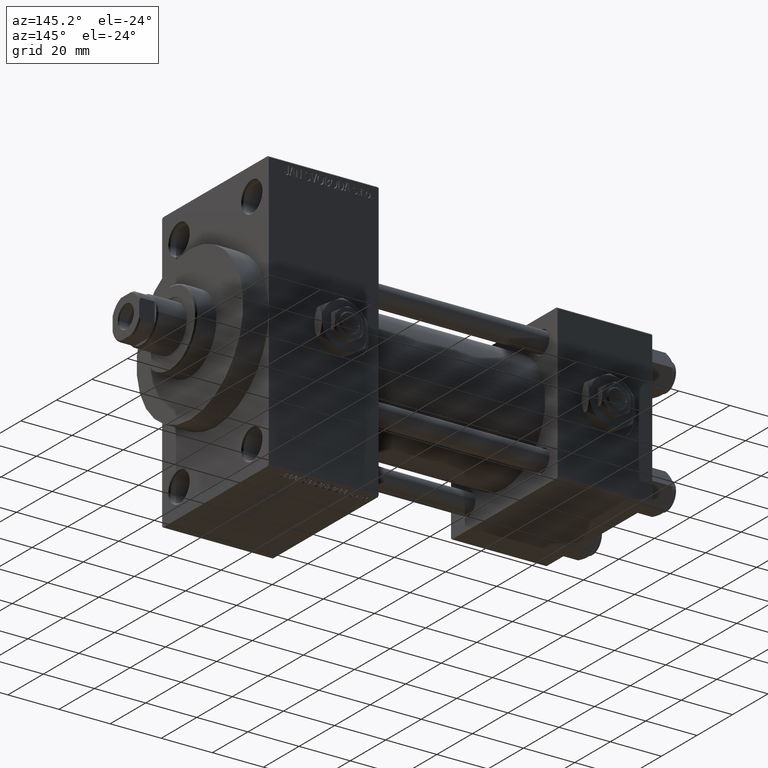
[diagram: clean part render]
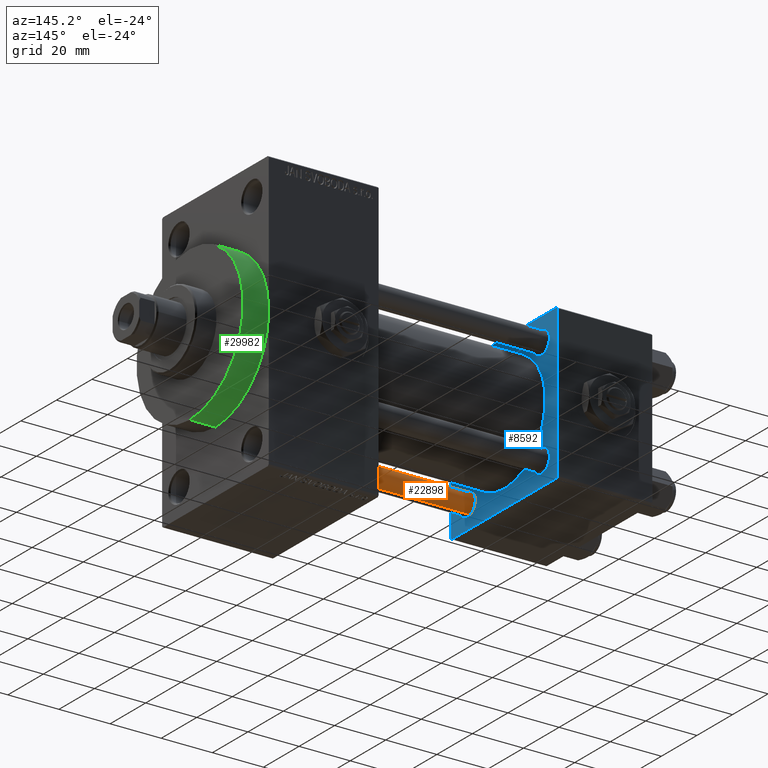
[diagram: same view with three faces highlighted in distinct colors, each labeled with its STEP entity id]
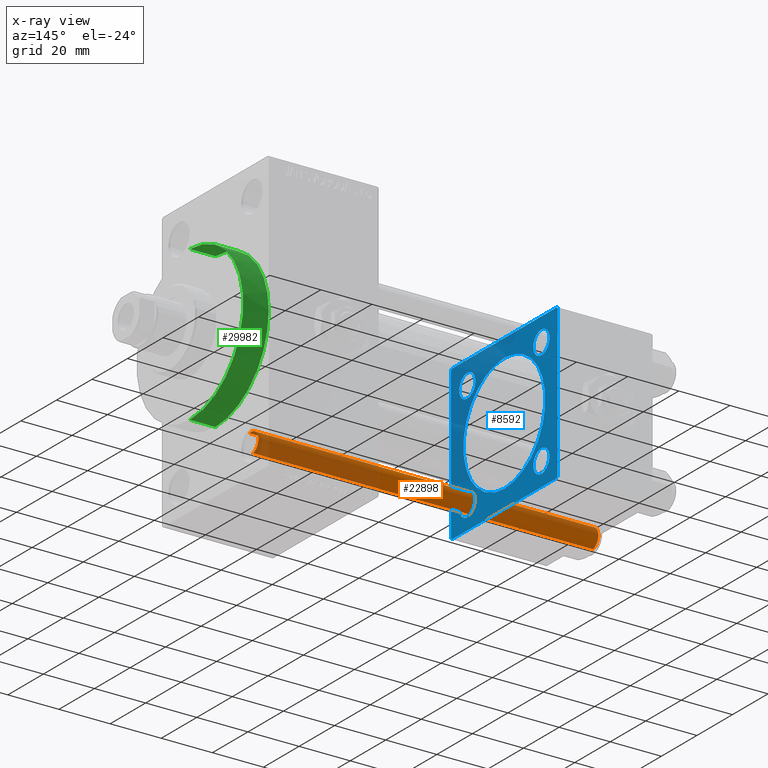
[diagram: x-ray of the same camera — body ghosted, the three highlighted faces saturated]
A machine part, auxiliary view with three faces highlighted in distinct colors.
The next image is the same camera in x-ray (body ghosted, the three faces saturated) — at least one of them is partly hidden behind the body in this view.
Their STEP definitions:

[orange] entity #22898 — the highlighted cylindrical surface (edge-blend (fillet) strip) has radius 4 mm, axis along (-1, 0, 0).
#92 = AXIS2_PLACEMENT_3D ( 'NONE', #48612, #29680, #14461 ) ;
#802 = DIRECTION ( 'NONE',  ( -0.000000000000000000, -0.000000000000000000, -1.000000000000000000 ) ) ;
#1283 = ORIENTED_EDGE ( 'NONE', *, *, #5029, .T. ) ;
#3264 = VECTOR ( 'NONE', #8091, 1000.000000000000000 ) ;
#3885 = DIRECTION ( 'NONE',  ( 0.000000000000000000, 0.000000000000000000, -1.000000000000000000 ) ) ;
#4070 = CIRCLE ( 'NONE', #92, 4.000000000000000000 ) ;
#5029 = EDGE_CURVE ( 'NONE', #23511, #7323, #4070, .T. ) ;
#5352 = ORIENTED_EDGE ( 'NONE', *, *, #48376, .T. ) ;
#5626 = AXIS2_PLACEMENT_3D ( 'NONE', #13697, #3885, #21423 ) ;
#7323 = VERTEX_POINT ( 'NONE', #30278 ) ;
#7791 = VERTEX_POINT ( 'NONE', #41805 ) ;
#8091 = DIRECTION ( 'NONE',  ( -0.000000000000000000, -0.000000000000000000, -1.000000000000000000 ) ) ;
#8617 = AXIS2_PLACEMENT_3D ( 'NONE', #19756, #802, #15994 ) ;
#11985 = CARTESIAN_POINT ( 'NONE',  ( -4.000000000000000000, 0.000000000000000000, 133.5000000000000000 ) ) ;
#13697 = CARTESIAN_POINT ( 'NONE',  ( 0.000000000000000000, 0.000000000000000000, 133.5000000000000000 ) ) ;
#14461 = DIRECTION ( 'NONE',  ( 1.000000000000000000, 0.000000000000000000, 0.000000000000000000 ) ) ;
#15030 = FACE_OUTER_BOUND ( 'NONE', #48951, .T. ) ;
#15994 = DIRECTION ( 'NONE',  ( -1.000000000000000000, 0.000000000000000000, 0.000000000000000000 ) ) ;
#16853 = VERTEX_POINT ( 'NONE', #11985 ) ;
#19756 = CARTESIAN_POINT ( 'NONE',  ( 0.000000000000000000, 0.000000000000000000, 134.0000000000000000 ) ) ;
#19793 = LINE ( 'NONE', #37771, #3264 ) ;
#21423 = DIRECTION ( 'NONE',  ( 1.000000000000000000, 0.000000000000000000, 0.000000000000000000 ) ) ;
#22401 = DIRECTION ( 'NONE',  ( -0.000000000000000000, -0.000000000000000000, -1.000000000000000000 ) ) ;
#22898 = ADVANCED_FACE ( 'NONE', ( #15030 ), #27256, .T. ) ;
#23511 = VERTEX_POINT ( 'NONE', #23633 ) ;
#23633 = CARTESIAN_POINT ( 'NONE',  ( -4.000000000000000000, 0.000000000000000000, 0.5000000000000004441 ) ) ;
#25416 = VECTOR ( 'NONE', #22401, 1000.000000000000000 ) ;
#27256 = CYLINDRICAL_SURFACE ( 'NONE', #8617, 4.000000000000000000 ) ;
#28264 = EDGE_CURVE ( 'NONE', #16853, #23511, #48322, .T. ) ;
#29680 = DIRECTION ( 'NONE',  ( -0.000000000000000000, -0.000000000000000000, 1.000000000000000000 ) ) ;
#30278 = CARTESIAN_POINT ( 'NONE',  ( 4.000000000000000000, 4.898587196589412829E-16, 0.5000000000000004441 ) ) ;
#32587 = EDGE_CURVE ( 'NONE', #7791, #7323, #19793, .T. ) ;
#33130 = CARTESIAN_POINT ( 'NONE',  ( -4.000000000000000000, 0.000000000000000000, 134.0000000000000000 ) ) ;
#37771 = CARTESIAN_POINT ( 'NONE',  ( 4.000000000000000000, 4.898587196589412829E-16, 134.0000000000000000 ) ) ;
#41805 = CARTESIAN_POINT ( 'NONE',  ( 4.000000000000000000, 4.898587196589412829E-16, 133.5000000000000000 ) ) ;
#42139 = ORIENTED_EDGE ( 'NONE', *, *, #32587, .F. ) ;
#43852 = CIRCLE ( 'NONE', #5626, 4.000000000000000000 ) ;
#45559 = ORIENTED_EDGE ( 'NONE', *, *, #28264, .T. ) ;
#48322 = LINE ( 'NONE', #33130, #25416 ) ;
#48376 = EDGE_CURVE ( 'NONE', #7791, #16853, #43852, .T. ) ;
#48612 = CARTESIAN_POINT ( 'NONE',  ( 0.000000000000000000, 0.000000000000000000, 0.5000000000000004441 ) ) ;
#48951 = EDGE_LOOP ( 'NONE', ( #42139, #5352, #45559, #1283 ) ) ;

[blue] entity #8592 — the highlighted planar face has unit normal (-1, 0, 0).
#93 = CIRCLE ( 'NONE', #12828, 4.499999999999976019 ) ;
#430 = EDGE_CURVE ( 'NONE', #9469, #18824, #17565, .T. ) ;
#649 = CARTESIAN_POINT ( 'NONE',  ( 37.00000000000000000, -29.50000000000001066, -30.00000000000000711 ) ) ;
#909 = CARTESIAN_POINT ( 'NONE',  ( 37.00000000000000000, -20.84999999999999076, 16.35000000000002629 ) ) ;
#1089 = CARTESIAN_POINT ( 'NONE',  ( 37.00000000000000711, -2.602085213965210642E-15, 23.00000000000000000 ) ) ;
#1521 = LINE ( 'NONE', #36186, #25633 ) ;
#1785 = DIRECTION ( 'NONE',  ( 0.000000000000000000, -1.000000000000000000, -1.156482317317871725E-16 ) ) ;
#1946 = ORIENTED_EDGE ( 'NONE', *, *, #43097, .T. ) ;
#2105 = DIRECTION ( 'NONE',  ( 0.000000000000000000, 0.000000000000000000, 1.000000000000000000 ) ) ;
#2153 = ORIENTED_EDGE ( 'NONE', *, *, #12135, .T. ) ;
#2436 = VERTEX_POINT ( 'NONE', #9170 ) ;
#2498 = DIRECTION ( 'NONE',  ( -1.000000000000000000, 0.000000000000000000, -0.000000000000000000 ) ) ;
#2706 = CIRCLE ( 'NONE', #5911, 4.499999999999976019 ) ;
#2717 = DIRECTION ( 'NONE',  ( 1.000000000000000000, -0.000000000000000000, 0.000000000000000000 ) ) ;
#2930 = CIRCLE ( 'NONE', #48329, 4.499999999999976019 ) ;
#3251 = CARTESIAN_POINT ( 'NONE',  ( 37.00000000000000000, -30.00000000000000000, -29.50000000000001776 ) ) ;
#3494 = CARTESIAN_POINT ( 'NONE',  ( 37.00000000000000000, 29.99999999999999289, 30.00000000000000000 ) ) ;
#3545 = FACE_BOUND ( 'NONE', #11697, .T. ) ;
#3781 = CARTESIAN_POINT ( 'NONE',  ( 37.00000000000000000, 0.000000000000000000, 0.000000000000000000 ) ) ;
#4023 = PLANE ( 'NONE',  #48790 ) ;
#4215 = LINE ( 'NONE', #11466, #8321 ) ;
#4380 = CARTESIAN_POINT ( 'NONE',  ( 37.00000000000000000, 20.84999999999999787, 25.34999999999997655 ) ) ;
#5858 = EDGE_CURVE ( 'NONE', #27356, #31516, #1521, .T. ) ;
#5911 = AXIS2_PLACEMENT_3D ( 'NONE', #46979, #27804, #12568 ) ;
#6270 = VECTOR ( 'NONE', #42559, 1000.000000000000000 ) ;
#6338 = DIRECTION ( 'NONE',  ( -1.000000000000000000, 0.000000000000000000, -0.000000000000000000 ) ) ;
#6352 = ORIENTED_EDGE ( 'NONE', *, *, #18579, .T. ) ;
#6600 = EDGE_LOOP ( 'NONE', ( #37070, #39353 ) ) ;
#6669 = CIRCLE ( 'NONE', #34521, 23.00000000000000000 ) ;
#7032 = ORIENTED_EDGE ( 'NONE', *, *, #25564, .T. ) ;
#7180 = ORIENTED_EDGE ( 'NONE', *, *, #47381, .T. ) ;
#7293 = CARTESIAN_POINT ( 'NONE',  ( 37.00000000000000000, -30.00000000000000000, 29.49999999999999289 ) ) ;
#7905 = DIRECTION ( 'NONE',  ( 0.000000000000000000, 0.000000000000000000, 1.000000000000000000 ) ) ;
#8065 = CARTESIAN_POINT ( 'NONE',  ( 37.00000000000000000, 29.99999999999999289, -29.50000000000000000 ) ) ;
#8321 = VECTOR ( 'NONE', #30892, 1000.000000000000000 ) ;
#8592 = ADVANCED_FACE ( 'NONE', ( #25267, #21768, #44691, #38672, #3545, #34934 ), #4023, .F. ) ;
#9002 = CIRCLE ( 'NONE', #40860, 23.00000000000000000 ) ;
#9037 = ORIENTED_EDGE ( 'NONE', *, *, #20371, .T. ) ;
#9170 = CARTESIAN_POINT ( 'NONE',  ( 37.00000000000000000, -20.84999999999999076, 25.34999999999998010 ) ) ;
#9247 = DIRECTION ( 'NONE',  ( -1.000000000000000000, 0.000000000000000000, -0.000000000000000000 ) ) ;
#9332 = AXIS2_PLACEMENT_3D ( 'NONE', #25849, #18096, #48767 ) ;
#9469 = VERTEX_POINT ( 'NONE', #47697 ) ;
#9585 = VECTOR ( 'NONE', #37067, 1000.000000000000000 ) ;
#9778 = VERTEX_POINT ( 'NONE', #3251 ) ;
#9817 = VERTEX_POINT ( 'NONE', #36671 ) ;
#10142 = CARTESIAN_POINT ( 'NONE',  ( 37.00000000000000000, 20.84999999999999787, -25.34999999999997655 ) ) ;
#11003 = ORIENTED_EDGE ( 'NONE', *, *, #27078, .F. ) ;
#11432 = DIRECTION ( 'NONE',  ( -0.000000000000000000, 0.7071067811865574537, 0.7071067811865376918 ) ) ;
#11466 = CARTESIAN_POINT ( 'NONE',  ( 37.00000000000000000, 29.99999999999999289, 30.00000000000000000 ) ) ;
#11599 = VERTEX_POINT ( 'NONE', #32725 ) ;
#11616 = ORIENTED_EDGE ( 'NONE', *, *, #42479, .F. ) ;
#11697 = EDGE_LOOP ( 'NONE', ( #11616, #39841 ) ) ;
#11789 = EDGE_CURVE ( 'NONE', #20305, #9817, #43376, .T. ) ;
#11810 = CIRCLE ( 'NONE', #39671, 4.499999999999976019 ) ;
#12135 = EDGE_CURVE ( 'NONE', #9778, #31516, #15122, .T. ) ;
#12568 = DIRECTION ( 'NONE',  ( 0.000000000000000000, 0.000000000000000000, 1.000000000000000000 ) ) ;
#12630 = EDGE_CURVE ( 'NONE', #12651, #42456, #4215, .T. ) ;
#12651 = VERTEX_POINT ( 'NONE', #34878 ) ;
#12828 = AXIS2_PLACEMENT_3D ( 'NONE', #30193, #22719, #41174 ) ;
#13241 = CARTESIAN_POINT ( 'NONE',  ( 37.00000000000000000, -20.84999999999999076, -20.85000000000000497 ) ) ;
#14708 = CARTESIAN_POINT ( 'NONE',  ( 37.00000000000000000, -20.84999999999999076, -16.35000000000002629 ) ) ;
#15002 = DIRECTION ( 'NONE',  ( -0.000000000000000000, -0.7071067811865474617, -0.7071067811865474617 ) ) ;
#15078 = CARTESIAN_POINT ( 'NONE',  ( 37.00000000000000000, 29.99999999999999289, 29.50000000000000000 ) ) ;
#15122 = LINE ( 'NONE', #649, #42557 ) ;
#15440 = EDGE_LOOP ( 'NONE', ( #35317, #7032, #11003, #32475, #21466, #6352, #7180, #2153 ) ) ;
#16913 = CARTESIAN_POINT ( 'NONE',  ( 37.00000000000000711, -2.602085213965210642E-15, 0.000000000000000000 ) ) ;
#17565 = CIRCLE ( 'NONE', #31093, 4.499999999999976019 ) ;
#18096 = DIRECTION ( 'NONE',  ( -1.000000000000000000, 0.000000000000000000, -0.000000000000000000 ) ) ;
#18193 = DIRECTION ( 'NONE',  ( 0.000000000000000000, 0.000000000000000000, 1.000000000000000000 ) ) ;
#18579 = EDGE_CURVE ( 'NONE', #42456, #42018, #41444, .T. ) ;
#18753 = DIRECTION ( 'NONE',  ( -0.000000000000000000, 0.000000000000000000, 1.000000000000000000 ) ) ;
#18824 = VERTEX_POINT ( 'NONE', #14708 ) ;
#19355 = EDGE_CURVE ( 'NONE', #27106, #2436, #2930, .T. ) ;
#19474 = VERTEX_POINT ( 'NONE', #15078 ) ;
#19610 = ORIENTED_EDGE ( 'NONE', *, *, #36063, .T. ) ;
#20305 = VERTEX_POINT ( 'NONE', #10142 ) ;
#20371 = EDGE_CURVE ( 'NONE', #22018, #45774, #25285, .T. ) ;
#21466 = ORIENTED_EDGE ( 'NONE', *, *, #12630, .T. ) ;
#21473 = ORIENTED_EDGE ( 'NONE', *, *, #430, .T. ) ;
#21768 = FACE_BOUND ( 'NONE', #26772, .T. ) ;
#22018 = VERTEX_POINT ( 'NONE', #43668 ) ;
#22719 = DIRECTION ( 'NONE',  ( -1.000000000000000000, 0.000000000000000000, -0.000000000000000000 ) ) ;
#24879 = VECTOR ( 'NONE', #25828, 1000.000000000000114 ) ;
#25077 = CARTESIAN_POINT ( 'NONE',  ( 37.00000000000000000, -29.50000000000000000, -30.00000000000000711 ) ) ;
#25167 = DIRECTION ( 'NONE',  ( 0.000000000000000000, 0.000000000000000000, 1.000000000000000000 ) ) ;
#25217 = VECTOR ( 'NONE', #15002, 1000.000000000000114 ) ;
#25267 = FACE_BOUND ( 'NONE', #28546, .T. ) ;
#25285 = CIRCLE ( 'NONE', #9332, 4.499999999999976019 ) ;
#25564 = EDGE_CURVE ( 'NONE', #27356, #33578, #26153, .T. ) ;
#25573 = CARTESIAN_POINT ( 'NONE',  ( 37.00000000000000000, 29.49999999999999289, 30.00000000000000000 ) ) ;
#25633 = VECTOR ( 'NONE', #1785, 1000.000000000000000 ) ;
#25670 = CARTESIAN_POINT ( 'NONE',  ( 37.00000000000000000, 29.99999999999999289, -29.50000000000000000 ) ) ;
#25828 = DIRECTION ( 'NONE',  ( 0.000000000000000000, -0.7071067811865474617, 0.7071067811865474617 ) ) ;
#25849 = CARTESIAN_POINT ( 'NONE',  ( 37.00000000000000000, 20.84999999999999787, 20.85000000000000142 ) ) ;
#26153 = LINE ( 'NONE', #25670, #39601 ) ;
#26493 = DIRECTION ( 'NONE',  ( -1.000000000000000000, 0.000000000000000000, -0.000000000000000000 ) ) ;
#26609 = DIRECTION ( 'NONE',  ( 0.000000000000000000, 0.7071067811865474617, -0.7071067811865474617 ) ) ;
#26772 = EDGE_LOOP ( 'NONE', ( #47763, #19610 ) ) ;
#27078 = EDGE_CURVE ( 'NONE', #19474, #33578, #35563, .T. ) ;
#27106 = VERTEX_POINT ( 'NONE', #909 ) ;
#27309 = CARTESIAN_POINT ( 'NONE',  ( 37.00000000000000000, 29.49999999999997868, -30.00000000000000000 ) ) ;
#27356 = VERTEX_POINT ( 'NONE', #27309 ) ;
#27801 = EDGE_CURVE ( 'NONE', #18824, #9469, #11810, .T. ) ;
#27804 = DIRECTION ( 'NONE',  ( -1.000000000000000000, 0.000000000000000000, -0.000000000000000000 ) ) ;
#27954 = CARTESIAN_POINT ( 'NONE',  ( 37.00000000000000000, 20.84999999999999787, -20.85000000000000142 ) ) ;
#28191 = CIRCLE ( 'NONE', #44901, 4.499999999999976019 ) ;
#28229 = DIRECTION ( 'NONE',  ( -1.000000000000000000, 0.000000000000000000, -0.000000000000000000 ) ) ;
#28546 = EDGE_LOOP ( 'NONE', ( #21473, #43928 ) ) ;
#30067 = LINE ( 'NONE', #41541, #9585 ) ;
#30193 = CARTESIAN_POINT ( 'NONE',  ( 37.00000000000000000, 20.84999999999999787, -20.85000000000000142 ) ) ;
#30892 = DIRECTION ( 'NONE',  ( 0.000000000000000000, -1.000000000000000000, -1.156482317317871725E-16 ) ) ;
#31093 = AXIS2_PLACEMENT_3D ( 'NONE', #37144, #2498, #18193 ) ;
#31516 = VERTEX_POINT ( 'NONE', #25077 ) ;
#32142 = DIRECTION ( 'NONE',  ( 1.000000000000000000, -0.000000000000000000, 0.000000000000000000 ) ) ;
#32422 = DIRECTION ( 'NONE',  ( 0.000000000000000000, 0.000000000000000000, 1.000000000000000000 ) ) ;
#32475 = ORIENTED_EDGE ( 'NONE', *, *, #39491, .T. ) ;
#32510 = CARTESIAN_POINT ( 'NONE',  ( 37.00000000000000000, -30.00000000000000000, 29.49999999999999289 ) ) ;
#32725 = CARTESIAN_POINT ( 'NONE',  ( 37.00000000000000711, 2.146024240737016609E-16, -23.00000000000000000 ) ) ;
#32893 = CARTESIAN_POINT ( 'NONE',  ( 37.00000000000000711, -2.602085213965210642E-15, 0.000000000000000000 ) ) ;
#33578 = VERTEX_POINT ( 'NONE', #8065 ) ;
#34521 = AXIS2_PLACEMENT_3D ( 'NONE', #32893, #2717, #25167 ) ;
#34586 = CARTESIAN_POINT ( 'NONE',  ( 37.00000000000000000, -20.84999999999999076, 20.85000000000000497 ) ) ;
#34878 = CARTESIAN_POINT ( 'NONE',  ( 37.00000000000000000, 29.49999999999999289, 30.00000000000000000 ) ) ;
#34934 = FACE_OUTER_BOUND ( 'NONE', #15440, .T. ) ;
#35317 = ORIENTED_EDGE ( 'NONE', *, *, #5858, .F. ) ;
#35563 = LINE ( 'NONE', #3494, #6270 ) ;
#36063 = EDGE_CURVE ( 'NONE', #9817, #20305, #93, .T. ) ;
#36186 = CARTESIAN_POINT ( 'NONE',  ( 37.00000000000000000, 29.99999999999999289, -30.00000000000000000 ) ) ;
#36671 = CARTESIAN_POINT ( 'NONE',  ( 37.00000000000000000, 20.84999999999999787, -16.35000000000002274 ) ) ;
#37067 = DIRECTION ( 'NONE',  ( 0.000000000000000000, 0.000000000000000000, -1.000000000000000000 ) ) ;
#37070 = ORIENTED_EDGE ( 'NONE', *, *, #19355, .T. ) ;
#37144 = CARTESIAN_POINT ( 'NONE',  ( 37.00000000000000000, -20.84999999999999076, -20.85000000000000497 ) ) ;
#38672 = FACE_BOUND ( 'NONE', #41546, .T. ) ;
#39353 = ORIENTED_EDGE ( 'NONE', *, *, #42927, .T. ) ;
#39378 = AXIS2_PLACEMENT_3D ( 'NONE', #27954, #9247, #32422 ) ;
#39491 = EDGE_CURVE ( 'NONE', #19474, #12651, #45003, .T. ) ;
#39597 = VERTEX_POINT ( 'NONE', #1089 ) ;
#39601 = VECTOR ( 'NONE', #11432, 999.9999999999998863 ) ;
#39671 = AXIS2_PLACEMENT_3D ( 'NONE', #13241, #28229, #40179 ) ;
#39841 = ORIENTED_EDGE ( 'NONE', *, *, #41314, .F. ) ;
#40179 = DIRECTION ( 'NONE',  ( 0.000000000000000000, 0.000000000000000000, 1.000000000000000000 ) ) ;
#40361 = CARTESIAN_POINT ( 'NONE',  ( 37.00000000000000000, -29.49999999999998579, 29.99999999999999289 ) ) ;
#40860 = AXIS2_PLACEMENT_3D ( 'NONE', #16913, #32142, #47340 ) ;
#41174 = DIRECTION ( 'NONE',  ( 0.000000000000000000, 0.000000000000000000, 1.000000000000000000 ) ) ;
#41314 = EDGE_CURVE ( 'NONE', #11599, #39597, #9002, .T. ) ;
#41444 = LINE ( 'NONE', #7293, #25217 ) ;
#41541 = CARTESIAN_POINT ( 'NONE',  ( 37.00000000000000000, -30.00000000000000000, 29.99999999999999289 ) ) ;
#41546 = EDGE_LOOP ( 'NONE', ( #9037, #1946 ) ) ;
#42018 = VERTEX_POINT ( 'NONE', #32510 ) ;
#42456 = VERTEX_POINT ( 'NONE', #40361 ) ;
#42479 = EDGE_CURVE ( 'NONE', #39597, #11599, #6669, .T. ) ;
#42557 = VECTOR ( 'NONE', #26609, 1000.000000000000114 ) ;
#42559 = DIRECTION ( 'NONE',  ( 0.000000000000000000, 0.000000000000000000, -1.000000000000000000 ) ) ;
#42927 = EDGE_CURVE ( 'NONE', #2436, #27106, #2706, .T. ) ;
#43097 = EDGE_CURVE ( 'NONE', #45774, #22018, #28191, .T. ) ;
#43376 = CIRCLE ( 'NONE', #39378, 4.499999999999976019 ) ;
#43668 = CARTESIAN_POINT ( 'NONE',  ( 37.00000000000000000, 20.84999999999999787, 16.35000000000002274 ) ) ;
#43928 = ORIENTED_EDGE ( 'NONE', *, *, #27801, .T. ) ;
#44691 = FACE_BOUND ( 'NONE', #6600, .T. ) ;
#44901 = AXIS2_PLACEMENT_3D ( 'NONE', #47470, #6338, #2105 ) ;
#45003 = LINE ( 'NONE', #25573, #24879 ) ;
#45774 = VERTEX_POINT ( 'NONE', #4380 ) ;
#46292 = DIRECTION ( 'NONE',  ( -1.000000000000000000, 0.000000000000000000, -0.000000000000000000 ) ) ;
#46979 = CARTESIAN_POINT ( 'NONE',  ( 37.00000000000000000, -20.84999999999999076, 20.85000000000000497 ) ) ;
#47340 = DIRECTION ( 'NONE',  ( 0.000000000000000000, 0.000000000000000000, 1.000000000000000000 ) ) ;
#47381 = EDGE_CURVE ( 'NONE', #42018, #9778, #30067, .T. ) ;
#47470 = CARTESIAN_POINT ( 'NONE',  ( 37.00000000000000000, 20.84999999999999787, 20.85000000000000142 ) ) ;
#47697 = CARTESIAN_POINT ( 'NONE',  ( 37.00000000000000000, -20.84999999999999076, -25.34999999999998010 ) ) ;
#47763 = ORIENTED_EDGE ( 'NONE', *, *, #11789, .T. ) ;
#48329 = AXIS2_PLACEMENT_3D ( 'NONE', #34586, #46292, #7905 ) ;
#48767 = DIRECTION ( 'NONE',  ( 0.000000000000000000, 0.000000000000000000, 1.000000000000000000 ) ) ;
#48790 = AXIS2_PLACEMENT_3D ( 'NONE', #3781, #26493, #18753 ) ;

[green] entity #29982 — the highlighted cylindrical surface (partial cylindrical patch) has radius 30 mm, axis along (-1, -0, -0).
#784 = CARTESIAN_POINT ( 'NONE',  ( 160.0000000000000284, 0.000000000000000000, 30.00000000000000000 ) ) ;
#939 = VECTOR ( 'NONE', #26739, 1000.000000000000000 ) ;
#1103 = CARTESIAN_POINT ( 'NONE',  ( 160.0000000000000284, 0.000000000000000000, 0.000000000000000000 ) ) ;
#2389 = AXIS2_PLACEMENT_3D ( 'NONE', #21928, #37131, #18180 ) ;
#5730 = EDGE_CURVE ( 'NONE', #40905, #13416, #27231, .T. ) ;
#11833 = ORIENTED_EDGE ( 'NONE', *, *, #22399, .T. ) ;
#13416 = VERTEX_POINT ( 'NONE', #33590 ) ;
#14175 = DIRECTION ( 'NONE',  ( 1.000000000000000000, 0.000000000000000000, 0.000000000000000000 ) ) ;
#14297 = CARTESIAN_POINT ( 'NONE',  ( 150.0000000000000284, 30.00000000000000000, 0.000000000000000000 ) ) ;
#14984 = LINE ( 'NONE', #22967, #43912 ) ;
#15008 = CARTESIAN_POINT ( 'NONE',  ( 160.0000000000000284, 0.000000000000000000, 30.00000000000000000 ) ) ;
#15586 = ORIENTED_EDGE ( 'NONE', *, *, #33929, .T. ) ;
#16301 = DIRECTION ( 'NONE',  ( 1.000000000000000000, 0.000000000000000000, 0.000000000000000000 ) ) ;
#17416 = CARTESIAN_POINT ( 'NONE',  ( 150.0000000000000284, 0.000000000000000000, 0.000000000000000000 ) ) ;
#17681 = ORIENTED_EDGE ( 'NONE', *, *, #47707, .T. ) ;
#18180 = DIRECTION ( 'NONE',  ( 0.000000000000000000, 0.000000000000000000, 1.000000000000000000 ) ) ;
#20299 = ORIENTED_EDGE ( 'NONE', *, *, #5730, .F. ) ;
#20812 = DIRECTION ( 'NONE',  ( 1.000000000000000000, 0.000000000000000000, 0.000000000000000000 ) ) ;
#21317 = CIRCLE ( 'NONE', #49184, 30.00000000000000000 ) ;
#21713 = EDGE_CURVE ( 'NONE', #39065, #40905, #23710, .T. ) ;
#21928 = CARTESIAN_POINT ( 'NONE',  ( 160.0000000000000284, 0.000000000000000000, 0.000000000000000000 ) ) ;
#22399 = EDGE_CURVE ( 'NONE', #23136, #25105, #21317, .T. ) ;
#22967 = CARTESIAN_POINT ( 'NONE',  ( 160.0000000000000284, 3.673940397442059178E-15, -30.00000000000000000 ) ) ;
#23136 = VERTEX_POINT ( 'NONE', #30434 ) ;
#23710 = CIRCLE ( 'NONE', #34840, 30.00000000000000000 ) ;
#24559 = CARTESIAN_POINT ( 'NONE',  ( 150.0000000000000284, 0.000000000000000000, 0.000000000000000000 ) ) ;
#25105 = VERTEX_POINT ( 'NONE', #14297 ) ;
#26739 = DIRECTION ( 'NONE',  ( -1.000000000000000000, -0.000000000000000000, -0.000000000000000000 ) ) ;
#27231 = LINE ( 'NONE', #15008, #939 ) ;
#27680 = ORIENTED_EDGE ( 'NONE', *, *, #21713, .F. ) ;
#28638 = CARTESIAN_POINT ( 'NONE',  ( 160.0000000000000284, 3.673940397442059178E-15, -30.00000000000000000 ) ) ;
#29405 = CYLINDRICAL_SURFACE ( 'NONE', #2389, 30.00000000000000000 ) ;
#29982 = ADVANCED_FACE ( 'NONE', ( #48345 ), #29405, .T. ) ;
#30434 = CARTESIAN_POINT ( 'NONE',  ( 150.0000000000000284, 3.673940397442059178E-15, -30.00000000000000000 ) ) ;
#33590 = CARTESIAN_POINT ( 'NONE',  ( 150.0000000000000284, 0.000000000000000000, 30.00000000000000000 ) ) ;
#33929 = EDGE_CURVE ( 'NONE', #39065, #23136, #14984, .T. ) ;
#34840 = AXIS2_PLACEMENT_3D ( 'NONE', #1103, #16301, #39244 ) ;
#36028 = DIRECTION ( 'NONE',  ( 0.000000000000000000, 0.000000000000000000, -1.000000000000000000 ) ) ;
#36492 = EDGE_LOOP ( 'NONE', ( #27680, #15586, #11833, #17681, #20299 ) ) ;
#36627 = CIRCLE ( 'NONE', #40611, 30.00000000000000000 ) ;
#37131 = DIRECTION ( 'NONE',  ( -1.000000000000000000, -0.000000000000000000, -0.000000000000000000 ) ) ;
#38163 = DIRECTION ( 'NONE',  ( -1.000000000000000000, -0.000000000000000000, -0.000000000000000000 ) ) ;
#39065 = VERTEX_POINT ( 'NONE', #28638 ) ;
#39244 = DIRECTION ( 'NONE',  ( 0.000000000000000000, 0.000000000000000000, -1.000000000000000000 ) ) ;
#40606 = DIRECTION ( 'NONE',  ( 0.000000000000000000, 0.000000000000000000, -1.000000000000000000 ) ) ;
#40611 = AXIS2_PLACEMENT_3D ( 'NONE', #24559, #20812, #36028 ) ;
#40905 = VERTEX_POINT ( 'NONE', #784 ) ;
#43912 = VECTOR ( 'NONE', #38163, 1000.000000000000000 ) ;
#47707 = EDGE_CURVE ( 'NONE', #25105, #13416, #36627, .T. ) ;
#48345 = FACE_OUTER_BOUND ( 'NONE', #36492, .T. ) ;
#49184 = AXIS2_PLACEMENT_3D ( 'NONE', #17416, #14175, #40606 ) ;